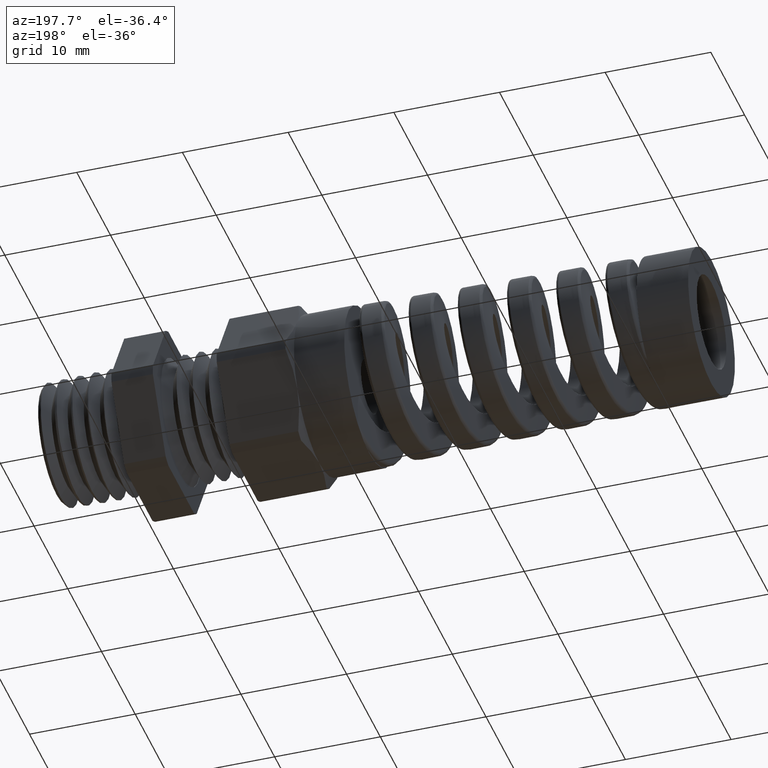
[diagram: clean part render]
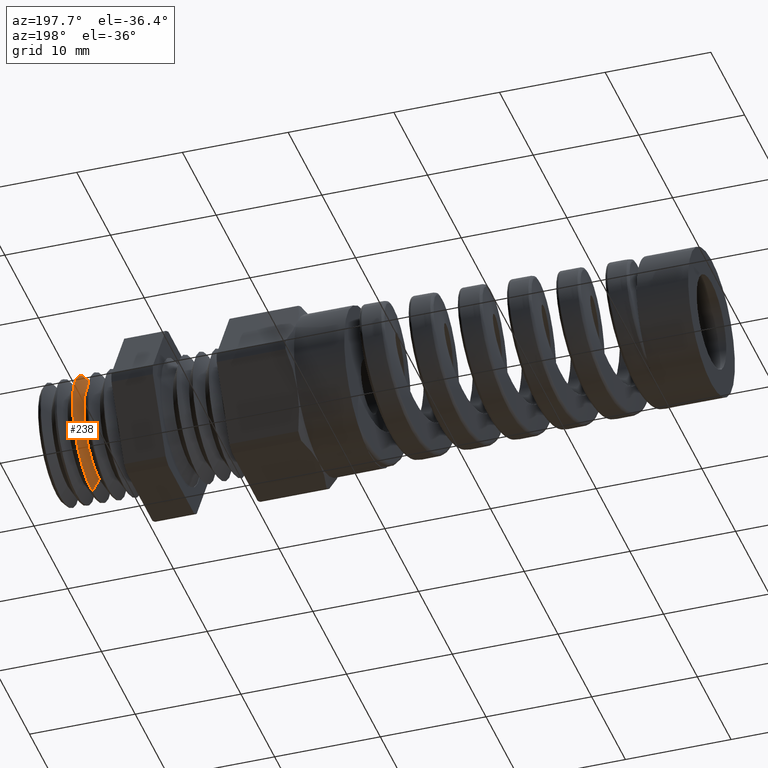
[diagram: same view with one face highlighted and labeled with its STEP entity id]
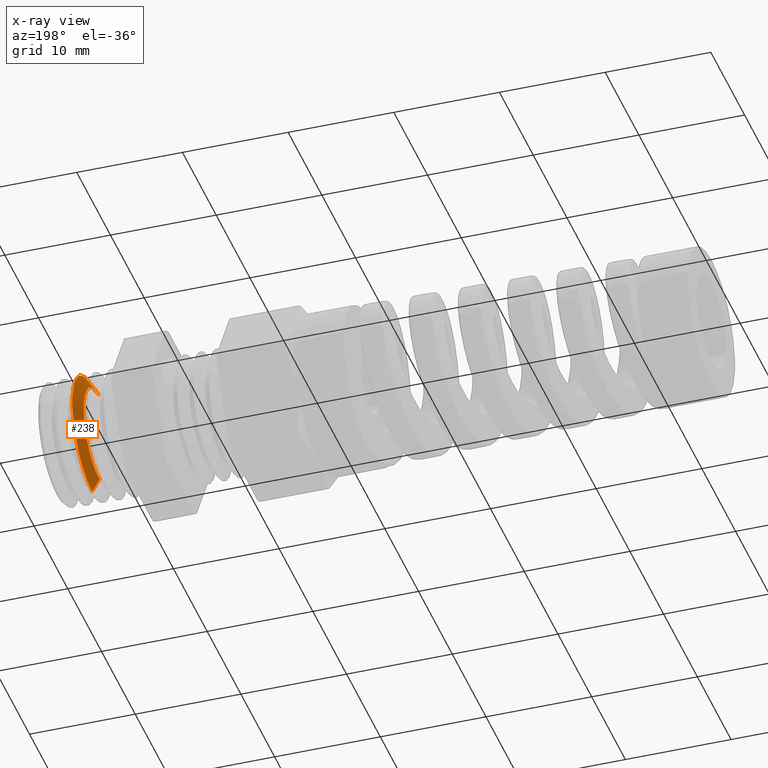
[diagram: x-ray of the same camera — body ghosted, the highlighted face saturated]
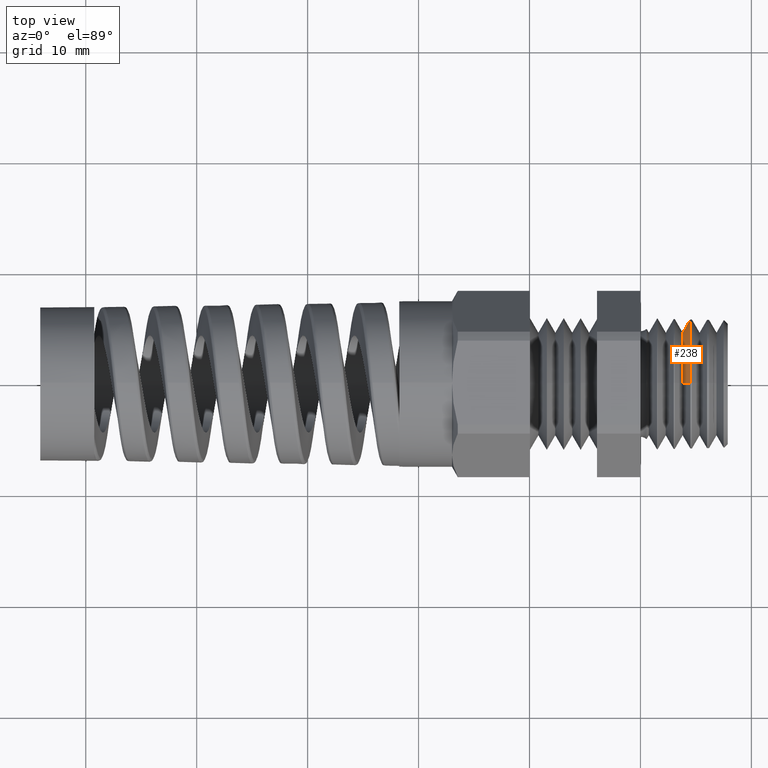
[diagram: same view with one face highlighted and labeled with its STEP entity id]
A machine part, auxiliary view. The second image highlights one B-rep face of the part: STEP entity #238.
The next image is the same camera in x-ray: the body ghosted, the highlighted face saturated — about 0% of this face is hidden behind the body in this view.
A second angle (top view) of the same face is appended — the face is thin or edge-on in the first view.
In plain terms, the highlighted conical surface has half-angle 60 deg.
Its self-contained STEP definition (entity closure, byte-faithful):
#229 = VERTEX_POINT ( 'NONE', #1509 ) ;
#230 = ORIENTED_EDGE ( 'NONE', *, *, #298, .T. ) ;
#231 = VERTEX_POINT ( 'NONE', #1508 ) ;
#238 = ADVANCED_FACE ( 'NONE', ( #1565 ), #1563, .T. ) ;
#239 = EDGE_LOOP ( 'NONE', ( #306, #309, #230, #299 ) ) ;
#240 = VERTEX_POINT ( 'NONE', #1558 ) ;
#298 = EDGE_CURVE ( 'NONE', #229, #231, #1720, .T. ) ;
#299 = ORIENTED_EDGE ( 'NONE', *, *, #300, .F. ) ;
#300 = EDGE_CURVE ( 'NONE', #308, #231, #1715, .T. ) ;
#306 = ORIENTED_EDGE ( 'NONE', *, *, #307, .F. ) ;
#307 = EDGE_CURVE ( 'NONE', #240, #308, #1700, .T. ) ;
#308 = VERTEX_POINT ( 'NONE', #1695 ) ;
#309 = ORIENTED_EDGE ( 'NONE', *, *, #310, .T. ) ;
#310 = EDGE_CURVE ( 'NONE', #240, #229, #1694, .T. ) ;
#1508 = CARTESIAN_POINT ( 'NONE',  ( 0.1773191810531119200, 2.821056367496802200E-017, -0.2303567338322307600 ) ) ;
#1509 = CARTESIAN_POINT ( 'NONE',  ( 0.1773191810531119200, 0.0000000000000000000, 0.2303567338322307600 ) ) ;
#1558 = CARTESIAN_POINT ( 'NONE',  ( 0.1499999860124963400, 0.0000000000000000000, 0.1830385000000000200 ) ) ;
#1559 = DIRECTION ( 'NONE',  ( 0.0000000000000000000, 0.0000000000000000000, -1.000000000000000000 ) ) ;
#1560 = DIRECTION ( 'NONE',  ( 1.000000000000000000, 0.0000000000000000000, 0.0000000000000000000 ) ) ;
#1561 = CARTESIAN_POINT ( 'NONE',  ( 0.1499999860124963400, 0.0000000000000000000, 0.0000000000000000000 ) ) ;
#1562 = AXIS2_PLACEMENT_3D ( 'NONE', #1561, #1560, #1559 ) ;
#1563 = CONICAL_SURFACE ( 'NONE', #1562, 0.1830385000000000200, 1.047197551196597400 ) ;
#1565 = FACE_OUTER_BOUND ( 'NONE', #239, .T. ) ;
#1693 = CARTESIAN_POINT ( 'NONE',  ( 0.1499999860124963400, 2.241575131457328500E-017, 0.1830385000000000200 ) ) ;
#1694 = LINE ( 'NONE', #1693, #1759 ) ;
#1695 = CARTESIAN_POINT ( 'NONE',  ( 0.1499999860124963400, 2.540211090674532000E-017, -0.1830385000000000200 ) ) ;
#1696 = DIRECTION ( 'NONE',  ( 0.0000000000000000000, 0.0000000000000000000, 1.000000000000000000 ) ) ;
#1697 = DIRECTION ( 'NONE',  ( -1.000000000000000000, 0.0000000000000000000, 0.0000000000000000000 ) ) ;
#1698 = CARTESIAN_POINT ( 'NONE',  ( 0.1499999860124963400, 0.0000000000000000000, 0.0000000000000000000 ) ) ;
#1699 = AXIS2_PLACEMENT_3D ( 'NONE', #1698, #1697, #1696 ) ;
#1700 = CIRCLE ( 'NONE', #1699, 0.1830385000000000200 ) ;
#1712 = DIRECTION ( 'NONE',  ( 0.5000000000000003300, 0.0000000000000000000, -0.8660254037844383700 ) ) ;
#1713 = VECTOR ( 'NONE', #1712, 39.37007874015748100 ) ;
#1714 = CARTESIAN_POINT ( 'NONE',  ( 0.1499999860124963400, 0.0000000000000000000, -0.1830385000000000200 ) ) ;
#1715 = LINE ( 'NONE', #1714, #1713 ) ;
#1716 = DIRECTION ( 'NONE',  ( 0.0000000000000000000, 0.0000000000000000000, -1.000000000000000000 ) ) ;
#1717 = DIRECTION ( 'NONE',  ( -1.000000000000000000, 0.0000000000000000000, 0.0000000000000000000 ) ) ;
#1718 = CARTESIAN_POINT ( 'NONE',  ( 0.1773191810531119200, 0.0000000000000000000, 0.0000000000000000000 ) ) ;
#1719 = AXIS2_PLACEMENT_3D ( 'NONE', #1718, #1717, #1716 ) ;
#1720 = CIRCLE ( 'NONE', #1719, 0.2303567338322307600 ) ;
#1758 = DIRECTION ( 'NONE',  ( 0.5000000000000003300, 1.060575238724906700E-016, 0.8660254037844383700 ) ) ;
#1759 = VECTOR ( 'NONE', #1758, 39.37007874015748100 ) ;